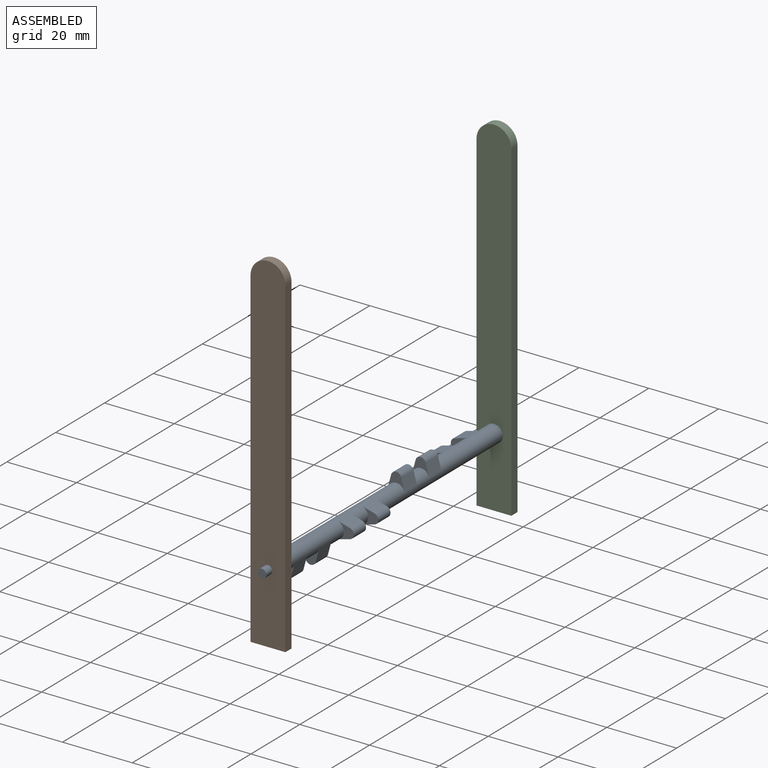
[diagram: assembled view]
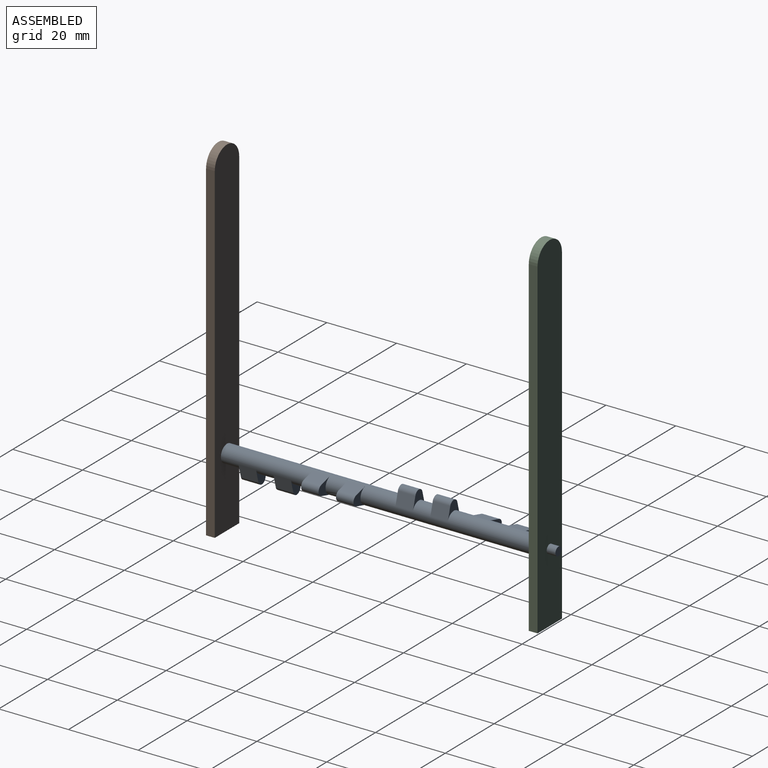
[diagram: assembled view, second angle]
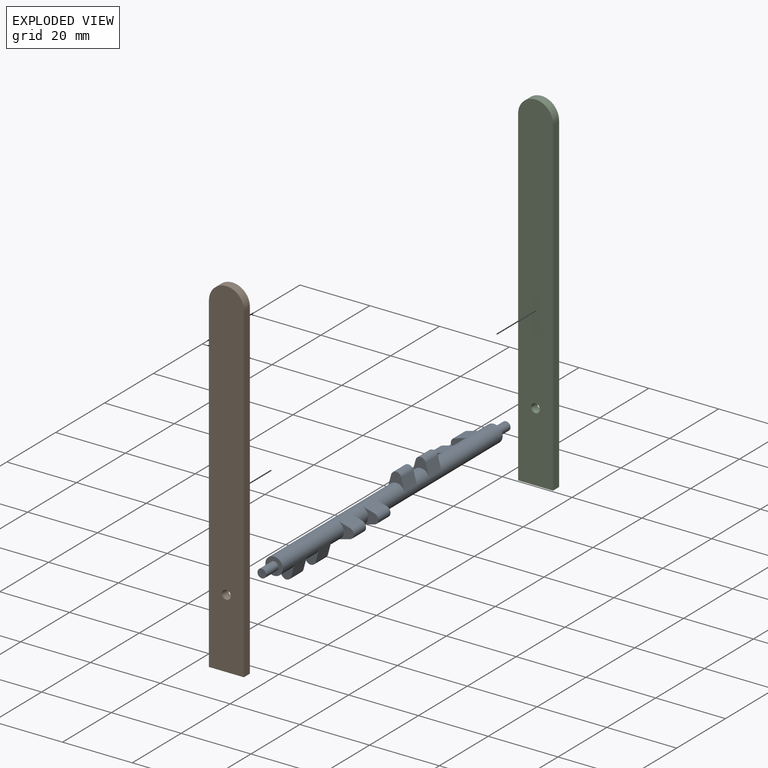
[diagram: exploded view]
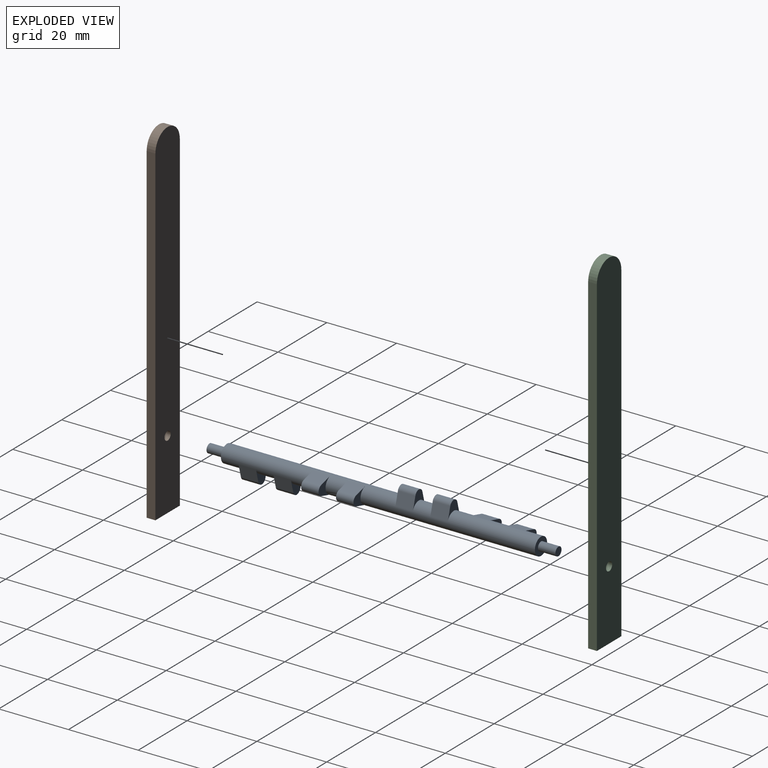
[diagram: exploded view, second angle]
ASSEMBLY  parts=3 mates=2
PART A: 47 faces, bbox 10.7x100x10.7 mm
  f0: cylinder r=2.5mm len=90mm, axis (0,1,0), area 1151.9mm2, adj f1,f2,f3,f5,f6,f7,f8,f10
  f1: plane 5x5mm, normal (0,-1,0), area 14.7mm2, adj f0,f43
  f2: plane 5x5mm, normal (0,1,0), area 14.7mm2, adj f0,f45
  f3: plane 5x3.61mm, normal (-0.97,0,-0.26), area 18.7mm2, adj f0,f4,f6,f7
  f4: cylinder r=1.5mm len=5mm, axis (0,1,0), area 19.6mm2, adj f3,f5,f6,f7
  f5: plane 5x3.61mm, normal (0.97,0,-0.26), area 18.7mm2, adj f0,f4,f6,f7
  f6: plane 4.83x4.72mm, normal (0,-1,0), area 9.7mm2, adj f0,f3,f4,f5
  f7: plane 4.83x4.72mm, normal (0,1,0), area 9.7mm2, adj f0,f3,f4,f5
  f8: plane 5x3.61mm, normal (-0.97,0,-0.26), area 18.7mm2, adj f0,f9,f11,f12
  f9: cylinder r=1.5mm len=5mm, axis (0,1,0), area 19.6mm2, adj f8,f10,f11,f12
  f10: plane 5x3.61mm, normal (0.97,0,-0.26), area 18.7mm2, adj f0,f9,f11,f12
  f11: plane 4.83x4.72mm, normal (0,-1,0), area 9.7mm2, adj f0,f8,f9,f10
  f12: plane 4.83x4.72mm, normal (0,1,0), area 9.7mm2, adj f0,f8,f9,f10
  f13: plane 4.83x4.72mm, normal (0,-1,0), area 9.7mm2, adj f0,f15,f16,f17
  f14: plane 4.83x4.72mm, normal (0,1,0), area 9.7mm2, adj f0,f15,f16,f17
  f15: plane 5x3.61mm, normal (0.26,0,-0.97), area 18.7mm2, adj f0,f13,f14,f16
  f16: cylinder r=1.5mm len=5mm, axis (0,1,0), area 19.6mm2, adj f13,f14,f15,f17
  f17: plane 5x3.61mm, normal (0.26,0,0.97), area 18.7mm2, adj f0,f13,f14,f16
  f18: plane 4.83x4.72mm, normal (0,-1,0), area 9.7mm2, adj f0,f20,f21,f22
  f19: plane 4.83x4.72mm, normal (0,1,0), area 9.7mm2, adj f0,f20,f21,f22
  f20: plane 5x3.61mm, normal (0.26,0,-0.97), area 18.7mm2, adj f0,f18,f19,f21
  f21: cylinder r=1.5mm len=5mm, axis (0,1,0), area 19.6mm2, adj f18,f19,f20,f22
  f22: plane 5x3.61mm, normal (0.26,0,0.97), area 18.7mm2, adj f0,f18,f19,f21
  f23: cylinder r=1.5mm len=5mm, axis (0,-1,0), area 19.6mm2, adj f24,f25,f26,f27
  f24: plane 5x3.61mm, normal (0.97,0,0.26), area 18.7mm2, adj f0,f23,f26,f27
  f25: plane 5x3.61mm, normal (-0.97,0,0.26), area 18.7mm2, adj f0,f23,f26,f27
  f26: plane 4.83x4.72mm, normal (0,1,0), area 9.7mm2, adj f0,f23,f24,f25
  f27: plane 4.83x4.72mm, normal (0,-1,0), area 9.7mm2, adj f0,f23,f24,f25
  f28: cylinder r=1.5mm len=5mm, axis (0,-1,0), area 19.6mm2, adj f29,f30,f31,f32
  f29: plane 5x3.61mm, normal (0.97,0,0.26), area 18.7mm2, adj f0,f28,f31,f32
  f30: plane 5x3.61mm, normal (-0.97,0,0.26), area 18.7mm2, adj f0,f28,f31,f32
  f31: plane 4.83x4.72mm, normal (0,1,0), area 9.7mm2, adj f0,f28,f29,f30
  f32: plane 4.83x4.72mm, normal (0,-1,0), area 9.7mm2, adj f0,f28,f29,f30
  f33: plane 4.83x4.72mm, normal (0,1,0), area 9.7mm2, adj f0,f35,f36,f37
  f34: plane 4.83x4.72mm, normal (0,-1,0), area 9.7mm2, adj f0,f35,f36,f37
  f35: plane 5x3.61mm, normal (-0.26,0,-0.97), area 18.7mm2, adj f0,f33,f34,f36
  f36: cylinder r=1.5mm len=5mm, axis (0,-1,0), area 19.6mm2, adj f33,f34,f35,f37
  f37: plane 5x3.61mm, normal (-0.26,0,0.97), area 18.7mm2, adj f0,f33,f34,f36
  f38: plane 4.83x4.72mm, normal (0,1,0), area 9.7mm2, adj f0,f40,f41,f42
  f39: plane 4.83x4.72mm, normal (0,-1,0), area 9.7mm2, adj f0,f40,f41,f42
  f40: plane 5x3.61mm, normal (-0.26,0,-0.97), area 18.7mm2, adj f0,f38,f39,f41
  f41: cylinder r=1.5mm len=5mm, axis (0,-1,0), area 19.6mm2, adj f38,f39,f40,f42
  f42: plane 5x3.61mm, normal (-0.26,0,0.97), area 18.7mm2, adj f0,f38,f39,f41
  f43: cylinder r=1.25mm len=5mm, axis (0,1,0), area 39.3mm2, adj f1,f44
  f44: plane 2.5x2.5mm, normal (0,-1,0), area 4.9mm2, adj f43
  f45: cylinder r=1.25mm len=5mm, axis (0,-1,0), area 39.3mm2, adj f2,f46
  f46: plane 2.5x2.5mm, normal (0,1,0), area 4.9mm2, adj f45
PART B: 7 faces, bbox 10x2.5x100 mm
  f0: plane 10x2.5mm, normal (0,0,-1), area 25mm2, adj f1,f2,f3,f4
  f1: plane 95x2.5mm, normal (1,0,0), area 237.5mm2, adj f0,f3,f4,f6
  f2: plane 95x2.5mm, normal (-1,0,0), area 237.5mm2, adj f0,f3,f4,f6
  f3: plane 100x10mm, normal (0,-1,0), area 984.4mm2, adj f0,f1,f2,f5,f6
  f4: plane 100x10mm, normal (0,1,0), area 984.4mm2, adj f0,f1,f2,f5,f6
  f5: cylinder r=1.25mm len=2.5mm, axis (0,1,0), area 19.6mm2, adj f3,f4
  f6: cylinder r=5mm len=10mm, axis (0,-1,0), area 39.3mm2, adj f1,f2,f3,f4
PART C: same geometry as B
PLACE A t=(11.83,14.71,-6.69)mm
PLACE B t=(11.83,-30.29,-6.69)mm
PLACE C t=(11.83,62.21,-6.69)mm
MATE revolute B.f5 <-> A.f43  axis (0,-1,0) through (11.83,-32.79,-6.69)mm
MATE revolute A.f43 <-> C.f5  axis (0,-1,0) through (11.83,62.21,-6.69)mm
